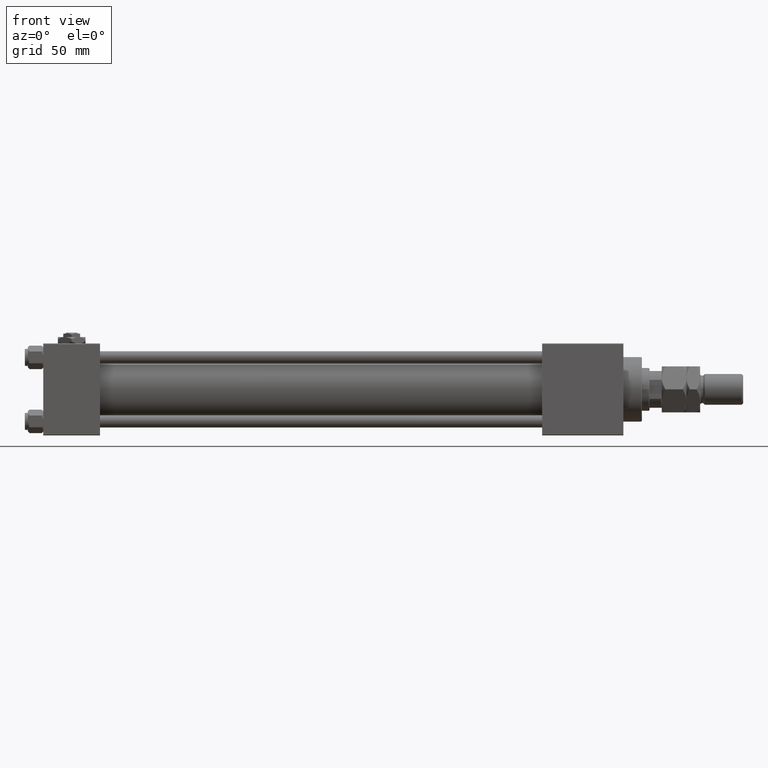
[diagram: clean part render]
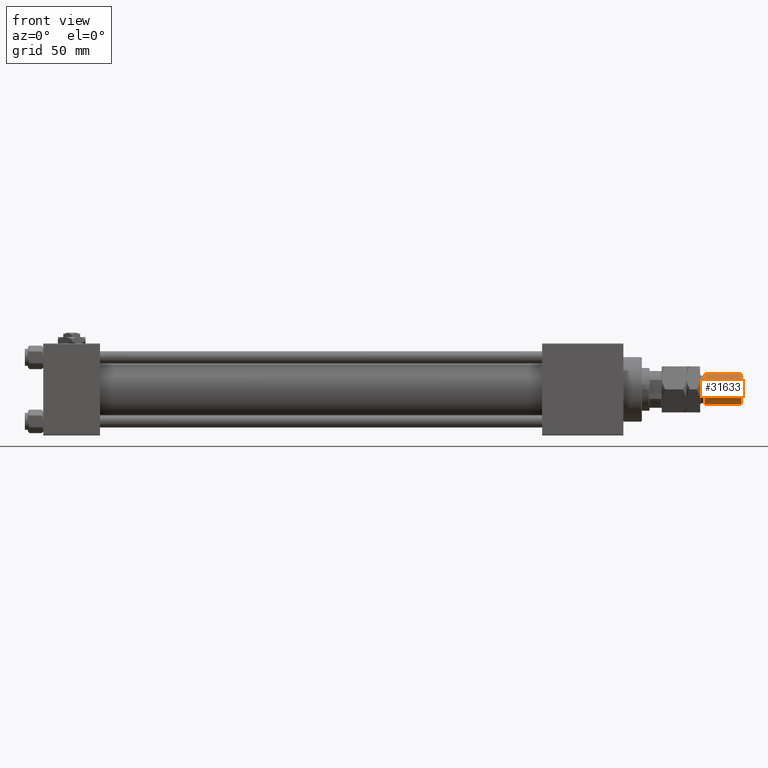
[diagram: same view with one face highlighted and labeled with its STEP entity id]
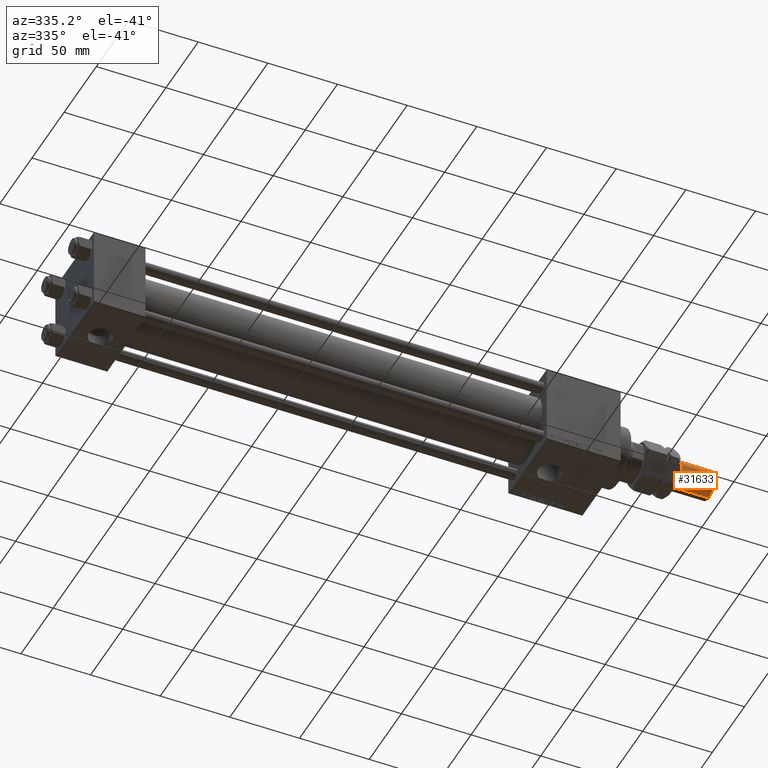
[diagram: same view with one face highlighted and labeled with its STEP entity id]
A machine part, front view. The second image highlights one B-rep face of the part: STEP entity #31633.
A second angle (auxiliary view) of the same face is appended — the face is thin or edge-on in the first view.
In plain terms, the highlighted cylindrical surface (edge-blend (fillet) strip) has radius 10 mm, axis along (-1, -0, 0).
Its self-contained STEP definition (entity closure, byte-faithful):
#1158 = VERTEX_POINT ( 'NONE', #24693 ) ;
#1984 = DIRECTION ( 'NONE',  ( 0.000000000000000000, 0.000000000000000000, -1.000000000000000000 ) ) ;
#2097 = DIRECTION ( 'NONE',  ( -0.000000000000000000, -0.000000000000000000, -1.000000000000000000 ) ) ;
#3046 = CARTESIAN_POINT ( 'NONE',  ( 0.000000000000000000, 0.000000000000000000, 28.00000000000002487 ) ) ;
#6205 = CIRCLE ( 'NONE', #13987, 10.00000000000000000 ) ;
#6351 = DIRECTION ( 'NONE',  ( -0.000000000000000000, -0.000000000000000000, -1.000000000000000000 ) ) ;
#7380 = DIRECTION ( 'NONE',  ( -0.000000000000000000, -0.000000000000000000, 1.000000000000000000 ) ) ;
#7644 = DIRECTION ( 'NONE',  ( 1.000000000000000000, 0.000000000000000000, 0.000000000000000000 ) ) ;
#8654 = CARTESIAN_POINT ( 'NONE',  ( 10.00000000000000000, 1.224646799147353059E-15, 28.00000000000002487 ) ) ;
#9967 = EDGE_LOOP ( 'NONE', ( #47587, #42749, #14814, #14941 ) ) ;
#11537 = EDGE_CURVE ( 'NONE', #17611, #31008, #30433, .T. ) ;
#11562 = EDGE_CURVE ( 'NONE', #1158, #13978, #6205, .T. ) ;
#13748 = VECTOR ( 'NONE', #6351, 1000.000000000000000 ) ;
#13978 = VERTEX_POINT ( 'NONE', #8654 ) ;
#13987 = AXIS2_PLACEMENT_3D ( 'NONE', #3046, #7380, #7644 ) ;
#14814 = ORIENTED_EDGE ( 'NONE', *, *, #36604, .T. ) ;
#14941 = ORIENTED_EDGE ( 'NONE', *, *, #11562, .T. ) ;
#17611 = VERTEX_POINT ( 'NONE', #20202 ) ;
#19520 = LINE ( 'NONE', #28705, #26204 ) ;
#20202 = CARTESIAN_POINT ( 'NONE',  ( 10.00000000000000000, 1.224646799147353059E-15, 52.00000000000004974 ) ) ;
#20617 = AXIS2_PLACEMENT_3D ( 'NONE', #43266, #2097, #26757 ) ;
#22140 = CYLINDRICAL_SURFACE ( 'NONE', #20617, 10.00000000000000000 ) ;
#22567 = CARTESIAN_POINT ( 'NONE',  ( 0.000000000000000000, 0.000000000000000000, 52.00000000000004974 ) ) ;
#24693 = CARTESIAN_POINT ( 'NONE',  ( -10.00000000000000000, 0.000000000000000000, 28.00000000000002487 ) ) ;
#26204 = VECTOR ( 'NONE', #36309, 1000.000000000000000 ) ;
#26757 = DIRECTION ( 'NONE',  ( -1.000000000000000000, 0.000000000000000000, 0.000000000000000000 ) ) ;
#28705 = CARTESIAN_POINT ( 'NONE',  ( 10.00000000000000000, 1.224646799147353059E-15, 53.00000000000000711 ) ) ;
#30433 = CIRCLE ( 'NONE', #52897, 10.00000000000000000 ) ;
#30710 = LINE ( 'NONE', #31251, #13748 ) ;
#31008 = VERTEX_POINT ( 'NONE', #41491 ) ;
#31251 = CARTESIAN_POINT ( 'NONE',  ( -10.00000000000000000, 0.000000000000000000, 53.00000000000000711 ) ) ;
#31633 = ADVANCED_FACE ( 'NONE', ( #47598 ), #22140, .T. ) ;
#35295 = DIRECTION ( 'NONE',  ( 1.000000000000000000, 0.000000000000000000, 0.000000000000000000 ) ) ;
#36309 = DIRECTION ( 'NONE',  ( -0.000000000000000000, -0.000000000000000000, -1.000000000000000000 ) ) ;
#36604 = EDGE_CURVE ( 'NONE', #31008, #1158, #30710, .T. ) ;
#39237 = EDGE_CURVE ( 'NONE', #17611, #13978, #19520, .T. ) ;
#41491 = CARTESIAN_POINT ( 'NONE',  ( -10.00000000000000000, 0.000000000000000000, 52.00000000000004974 ) ) ;
#42749 = ORIENTED_EDGE ( 'NONE', *, *, #11537, .T. ) ;
#43266 = CARTESIAN_POINT ( 'NONE',  ( 0.000000000000000000, 0.000000000000000000, 53.00000000000000711 ) ) ;
#47587 = ORIENTED_EDGE ( 'NONE', *, *, #39237, .F. ) ;
#47598 = FACE_OUTER_BOUND ( 'NONE', #9967, .T. ) ;
#52897 = AXIS2_PLACEMENT_3D ( 'NONE', #22567, #1984, #35295 ) ;